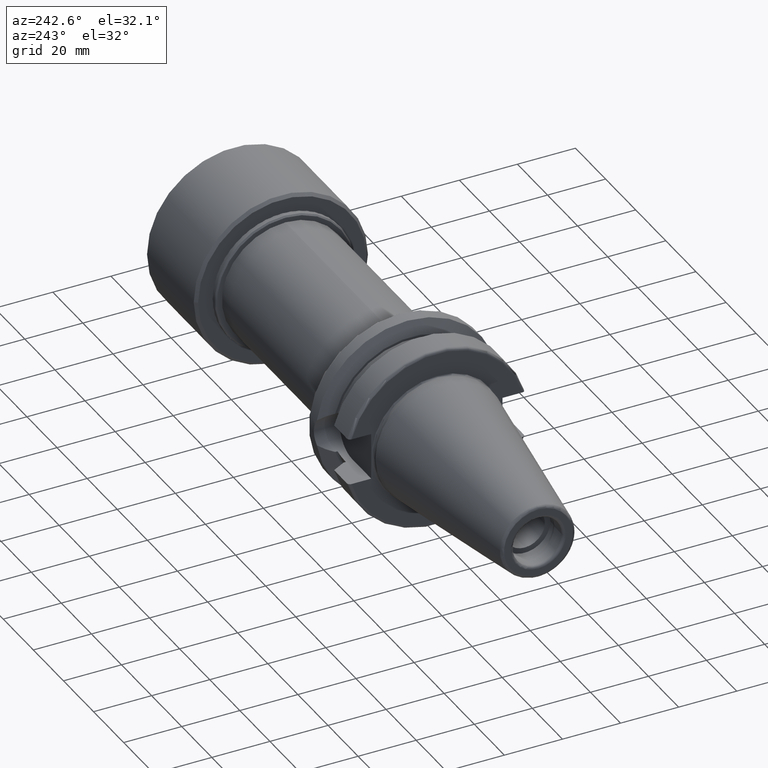
[diagram: clean part render]
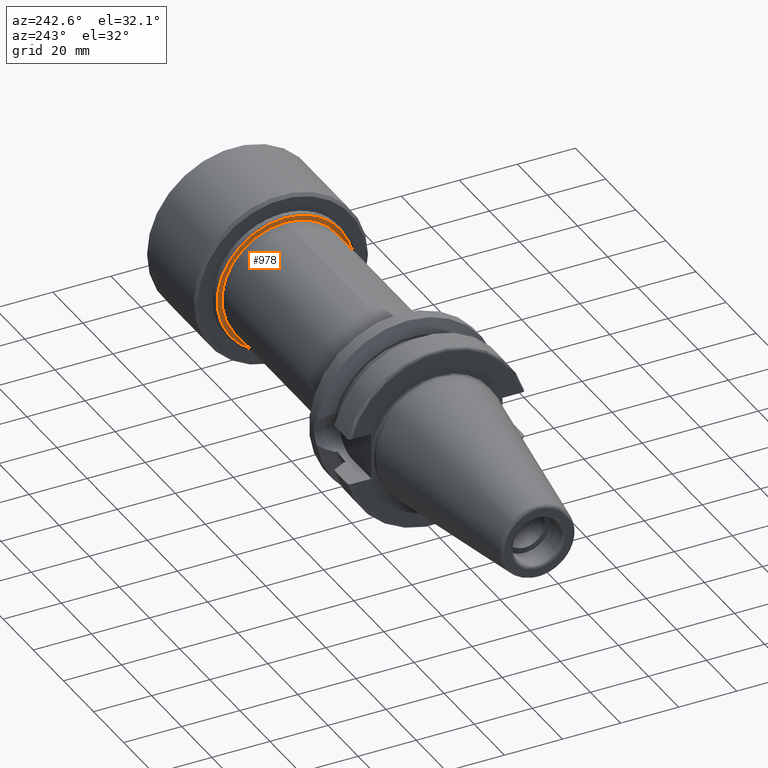
[diagram: same view with one face highlighted and labeled with its STEP entity id]
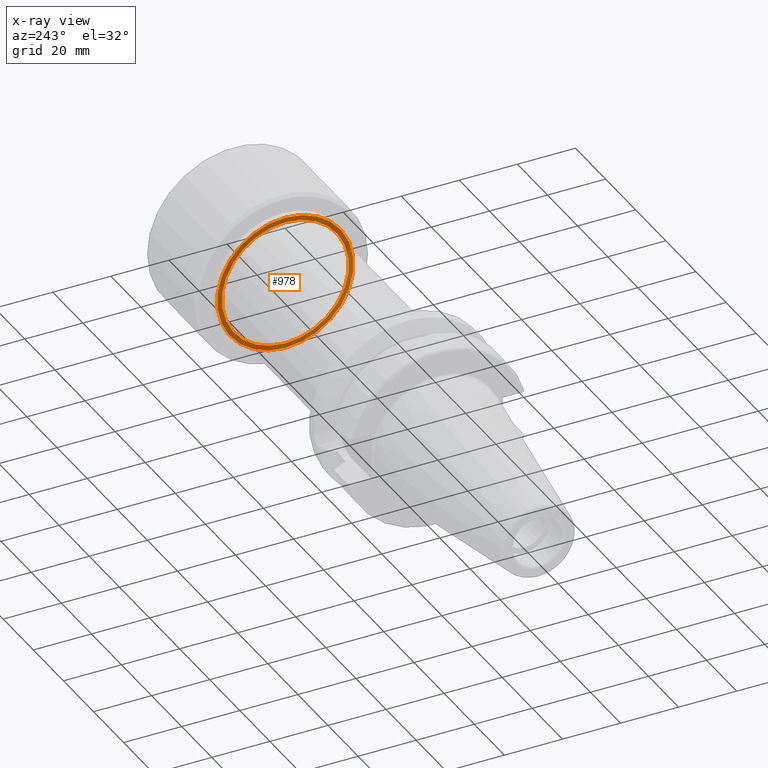
[diagram: x-ray of the same camera — body ghosted, the highlighted face saturated]
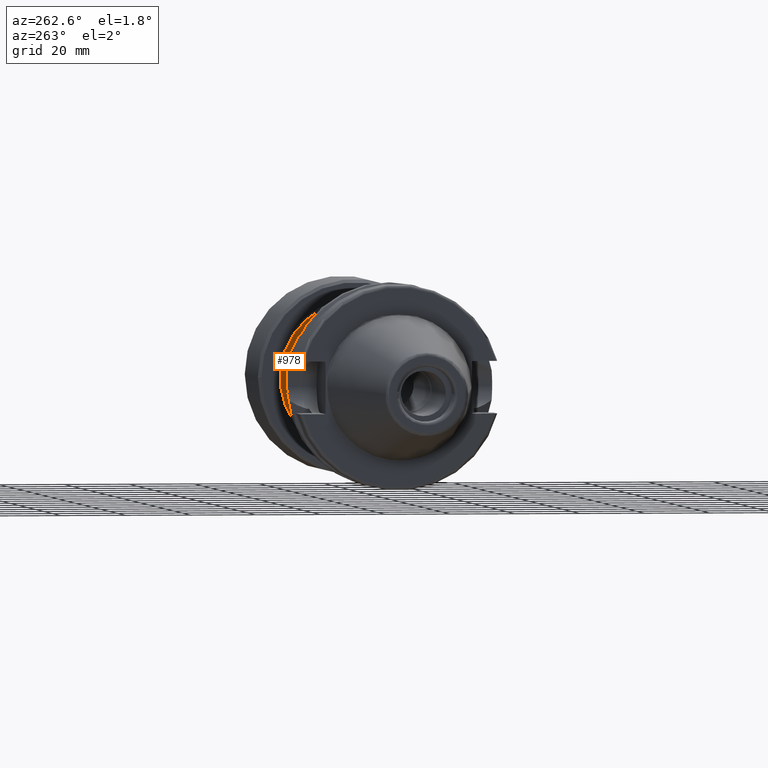
[diagram: same view with one face highlighted and labeled with its STEP entity id]
A machine part, auxiliary view. The second image highlights one B-rep face of the part: STEP entity #978.
The next image is the same camera in x-ray: the body ghosted, the highlighted face saturated — about 38% of this face is hidden behind the body in this view.
A second angle (auxiliary view) of the same face is appended — the face is thin or edge-on in the first view.
In plain terms, the highlighted planar face has unit normal (-1, 0, 0).
Its self-contained STEP definition (entity closure, byte-faithful):
#61=FACE_BOUND('',#177,.T.);
#72=PLANE('',#1120);
#114=FACE_OUTER_BOUND('',#176,.T.);
#176=EDGE_LOOP('',(#680));
#177=EDGE_LOOP('',(#681));
#357=CIRCLE('',#1116,23.5);
#360=CIRCLE('',#1121,21.85);
#430=VERTEX_POINT('',#1592);
#433=VERTEX_POINT('',#1602);
#526=EDGE_CURVE('',#430,#430,#357,.T.);
#530=EDGE_CURVE('',#433,#433,#360,.T.);
#680=ORIENTED_EDGE('',*,*,#526,.F.);
#681=ORIENTED_EDGE('',*,*,#530,.T.);
#978=ADVANCED_FACE('',(#114,#61),#72,.T.);
#1116=AXIS2_PLACEMENT_3D('',#1594,#1262,#1263);
#1120=AXIS2_PLACEMENT_3D('',#1601,#1271,#1272);
#1121=AXIS2_PLACEMENT_3D('',#1603,#1273,#1274);
#1262=DIRECTION('center_axis',(1.,0.,0.));
#1263=DIRECTION('ref_axis',(0.,0.,1.));
#1271=DIRECTION('center_axis',(-1.,0.,0.));
#1272=DIRECTION('ref_axis',(0.,0.,1.));
#1273=DIRECTION('center_axis',(1.,0.,0.));
#1274=DIRECTION('ref_axis',(0.,0.,-1.));
#1592=CARTESIAN_POINT('',(102.7,2.87791997799628E-15,-23.5));
#1594=CARTESIAN_POINT('Origin',(102.7,0.,0.));
#1601=CARTESIAN_POINT('Origin',(102.7,0.,-24.));
#1602=CARTESIAN_POINT('',(102.7,-2.67585325613697E-15,21.85));
#1603=CARTESIAN_POINT('Origin',(102.7,0.,0.));